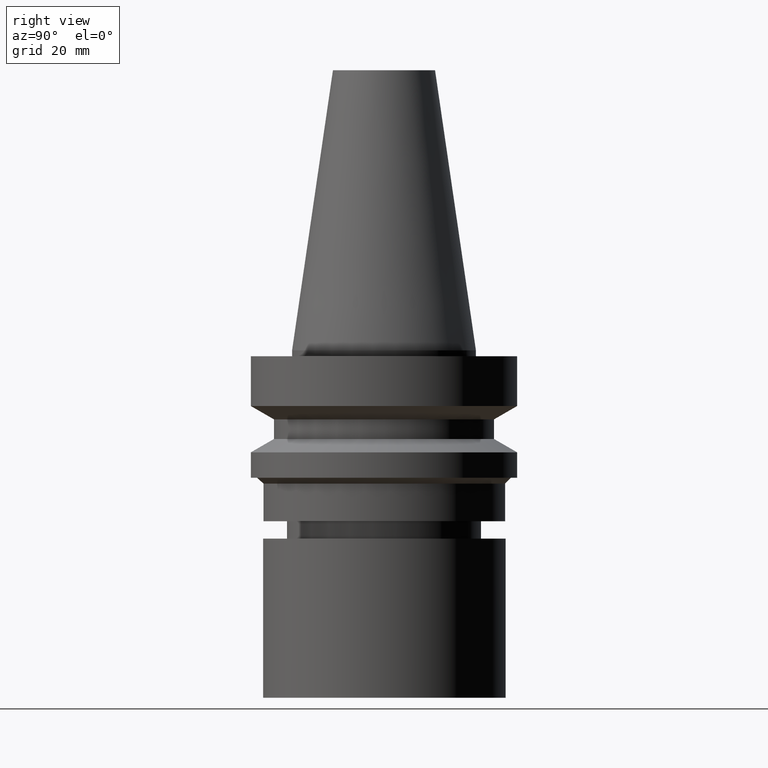
[diagram: clean part render]
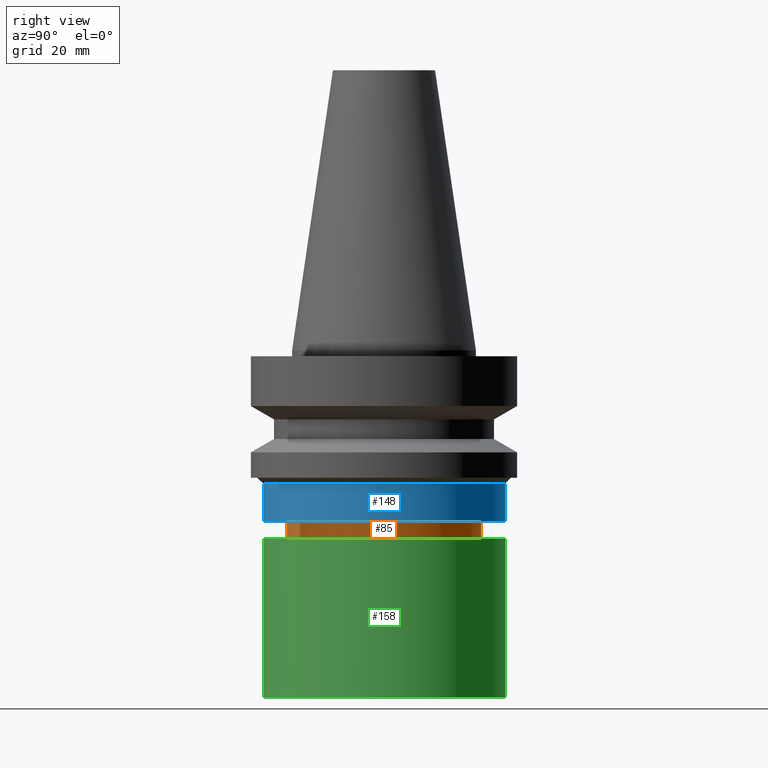
[diagram: same view with three faces highlighted in distinct colors, each labeled with its STEP entity id]
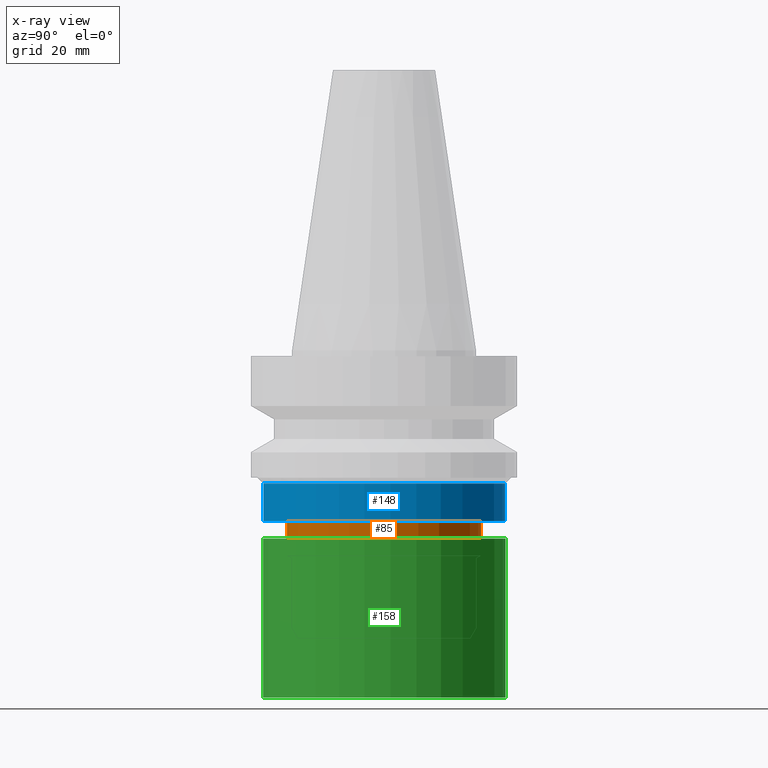
[diagram: x-ray of the same camera — body ghosted, the three highlighted faces saturated]
A machine part, right view with three faces highlighted in distinct colors.
The next image is the same camera in x-ray (body ghosted, the three faces saturated) — at least one of them is partly hidden behind the body in this view.
Their STEP definitions:

[orange] entity #85 — the highlighted cylindrical surface (bore or boss wall) has radius 16.75 mm, axis along (0, 0, -1).
#85=ADVANCED_FACE('Unnamed[1]',(#214,#215),#216,.T.);
#110=EDGE_CURVE('Unnamed[1]',#253,#253,#254,.T.);
#145=EDGE_CURVE('Unnamed[1]',#307,#307,#308,.T.);
#214=FACE_BOUND('',#392,.T.);
#215=FACE_BOUND('',#393,.T.);
#216=CYLINDRICAL_SURFACE('',#394,16.7499999999962);
#253=VERTEX_POINT('',#440);
#254=CIRCLE('',#441,16.7499999999907);
#307=VERTEX_POINT('',#508);
#308=CIRCLE('',#509,16.7500000000017);
#392=EDGE_LOOP('',(#593));
#393=EDGE_LOOP('',(#594));
#394=AXIS2_PLACEMENT_3D('',#595,#596,#597);
#440=CARTESIAN_POINT('',(1.8063540287423E-015,16.7499999999907,-29.4999999999992));
#441=AXIS2_PLACEMENT_3D('',#635,#636,#637);
#508=CARTESIAN_POINT('',(2.17174729353663E-015,16.7500000000017,-35.467324865401));
#509=AXIS2_PLACEMENT_3D('',#696,#697,#698);
#593=ORIENTED_EDGE('',*,*,#145,.F.);
#594=ORIENTED_EDGE('',*,*,#110,.T.);
#595=CARTESIAN_POINT('',(1.98905066113946E-015,3.97810132227893E-015,-32.4836624327001));
#596=DIRECTION('',(6.12323399573676E-017,1.22464679914735E-016,-1.0));
#597=DIRECTION('',(-1.23259516440783E-032,1.0,1.22464679914735E-016));
#635=CARTESIAN_POINT('',(1.8063540287423E-015,3.6127080574846E-015,-29.4999999999992));
#636=DIRECTION('',(6.12323399573677E-017,1.22464679914735E-016,-1.0));
#637=DIRECTION('',(-1.23259516440783E-032,1.0,1.22464679914735E-016));
#696=CARTESIAN_POINT('',(2.17174729353663E-015,4.34349458707326E-015,-35.467324865401));
#697=DIRECTION('',(6.12323399573677E-017,1.22464679914735E-016,-1.0));
#698=DIRECTION('',(-1.23259516440783E-032,1.0,1.22464679914735E-016));

[blue] entity #148 — the highlighted cylindrical surface (bore or boss wall) has radius 20.9271 mm, axis along (0, 0, -1).
#115=EDGE_CURVE('Unnamed[1]',#260,#260,#261,.T.);
#143=EDGE_CURVE('Unnamed[1]',#304,#304,#305,.T.);
#148=ADVANCED_FACE('Unnamed[1]',(#311,#312),#313,.T.);
#260=VERTEX_POINT('',#449);
#261=CIRCLE('',#450,20.9270816115704);
#304=VERTEX_POINT('',#504);
#305=CIRCLE('',#505,20.9270816115704);
#311=FACE_BOUND('',#513,.T.);
#312=FACE_BOUND('',#514,.T.);
#313=CYLINDRICAL_SURFACE('',#515,20.9270816115704);
#449=CARTESIAN_POINT('',(1.80635402874234E-015,20.9270816115704,-29.4999999999999));
#450=AXIS2_PLACEMENT_3D('',#643,#644,#645);
#504=CARTESIAN_POINT('',(1.40834381901946E-015,20.9270816115704,-23.0000000000001));
#505=AXIS2_PLACEMENT_3D('',#693,#694,#695);
#513=EDGE_LOOP('',(#700));
#514=EDGE_LOOP('',(#701));
#515=AXIS2_PLACEMENT_3D('',#702,#703,#704);
#643=CARTESIAN_POINT('',(1.80635402874234E-015,3.61270805748468E-015,-29.4999999999999));
#644=DIRECTION('',(6.12323399573677E-017,1.22464679914735E-016,-1.0));
#645=DIRECTION('',(-1.23259516440783E-032,1.0,1.22464679914735E-016));
#693=CARTESIAN_POINT('',(1.40834381901946E-015,2.81668763803893E-015,-23.0000000000001));
#694=DIRECTION('',(6.12323399573677E-017,1.22464679914735E-016,-1.0));
#695=DIRECTION('',(-1.23259516440783E-032,1.0,1.22464679914735E-016));
#700=ORIENTED_EDGE('',*,*,#115,.F.);
#701=ORIENTED_EDGE('',*,*,#143,.T.);
#702=CARTESIAN_POINT('',(1.6073489238809E-015,3.21469784776181E-015,-26.25));
#703=DIRECTION('',(6.12323399573677E-017,1.22464679914735E-016,-1.0));
#704=DIRECTION('',(-1.23259516440783E-032,1.0,1.22464679914735E-016));

[green] entity #158 — the highlighted cylindrical surface (bore or boss wall) has radius 21 mm, axis along (0, 0, -1).
#152=EDGE_CURVE('Unnamed[1]',#318,#318,#319,.T.);
#158=ADVANCED_FACE('Unnamed[1]',(#327,#328),#329,.T.);
#177=EDGE_CURVE('Unnamed[1]',#357,#357,#358,.T.);
#318=VERTEX_POINT('',#522);
#319=CIRCLE('',#523,21.0);
#327=FACE_BOUND('',#533,.T.);
#328=FACE_BOUND('',#534,.T.);
#329=CYLINDRICAL_SURFACE('',#535,21.0);
#357=VERTEX_POINT('',#571);
#358=CIRCLE('',#572,21.0);
#522=CARTESIAN_POINT('',(3.67394039744206E-015,21.0,-60.0));
#523=AXIS2_PLACEMENT_3D('',#708,#709,#710);
#533=EDGE_LOOP('',(#718));
#534=EDGE_LOOP('',(#719));
#535=AXIS2_PLACEMENT_3D('',#720,#721,#722);
#571=CARTESIAN_POINT('',(1.99005104861445E-015,21.0,-32.5));
#572=AXIS2_PLACEMENT_3D('',#752,#753,#754);
#708=CARTESIAN_POINT('',(3.67394039744206E-015,7.34788079488412E-015,-60.0));
#709=DIRECTION('',(6.12323399573677E-017,1.22464679914735E-016,-1.0));
#710=DIRECTION('',(-1.23259516440783E-032,1.0,1.22464679914735E-016));
#718=ORIENTED_EDGE('',*,*,#152,.F.);
#719=ORIENTED_EDGE('',*,*,#177,.T.);
#720=CARTESIAN_POINT('',(2.83199572302825E-015,5.66399144605651E-015,-46.25));
#721=DIRECTION('',(6.12323399573677E-017,1.22464679914735E-016,-1.0));
#722=DIRECTION('',(-1.23259516440783E-032,1.0,1.22464679914735E-016));
#752=CARTESIAN_POINT('',(1.99005104861445E-015,3.9801020972289E-015,-32.5));
#753=DIRECTION('',(6.12323399573677E-017,1.22464679914735E-016,-1.0));
#754=DIRECTION('',(-1.23259516440783E-032,1.0,1.22464679914735E-016));